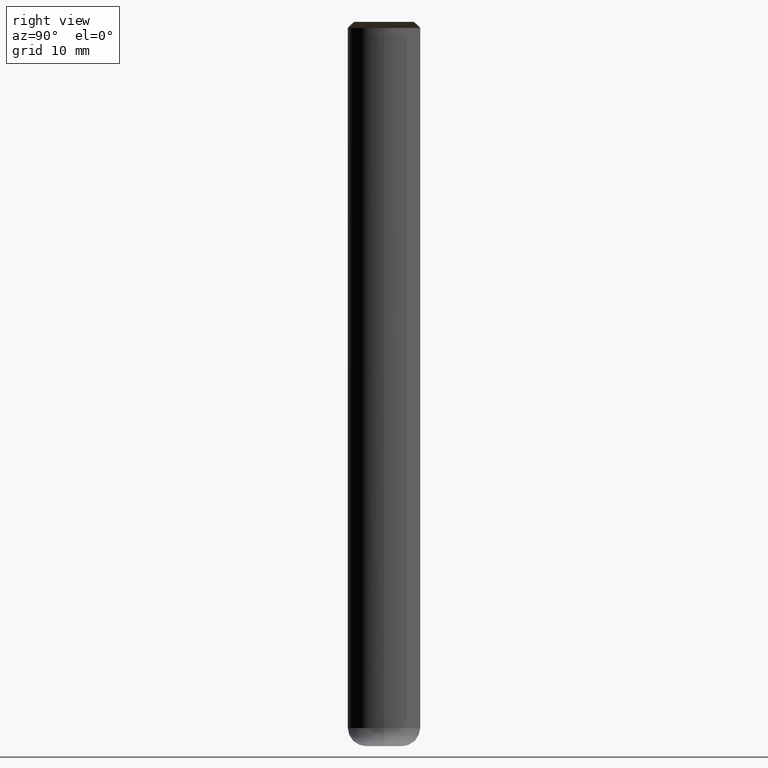
[diagram: clean part render]
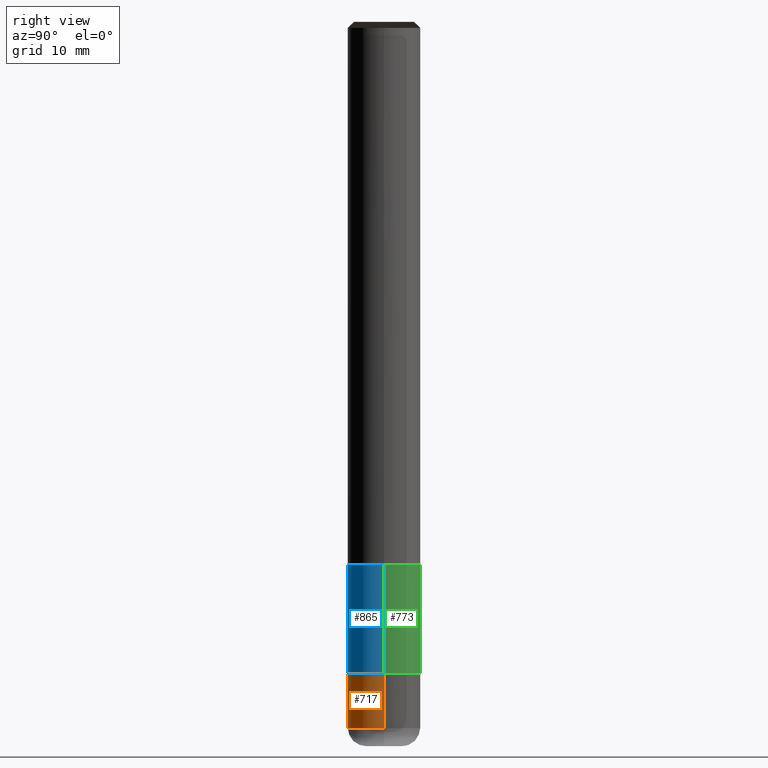
[diagram: same view with three faces highlighted in distinct colors, each labeled with its STEP entity id]
A machine part, right view with three faces highlighted in distinct colors.
Their STEP definitions:

[orange] entity #717 — the highlighted face is a freeform B-spline surface patch.
#535=CARTESIAN_POINT('',(3.0,0.0,-13.5));
#539=CARTESIAN_POINT('',(-3.0,0.0,-13.5));
#540=CARTESIAN_POINT('',(3.0,0.0,-9.0));
#544=CARTESIAN_POINT('',(-3.0,0.0,-9.0));
#552=CARTESIAN_POINT('',(-3.0,-3.0,-13.5));
#553=CARTESIAN_POINT('',(0.0,-3.0,-13.5));
#554=CARTESIAN_POINT('',(3.0,-3.0,-13.5));
#555=CARTESIAN_POINT('',(-3.0,-3.0,-9.0));
#556=CARTESIAN_POINT('',(0.0,-3.0,-9.0));
#557=CARTESIAN_POINT('',(3.0,-3.0,-9.0));
#698=(
BOUNDED_SURFACE()
B_SPLINE_SURFACE(1,2,(
(#539,#552,#553,#554,#535),
(#544,#555,#556,#557,#540)
), .UNSPECIFIED.,.F.,.F.,.F.)
B_SPLINE_SURFACE_WITH_KNOTS((2,2),(3,2,3),(
0.0,1.0),(
0.0,0.5,1.0), .UNSPECIFIED.)
GEOMETRIC_REPRESENTATION_ITEM()
RATIONAL_B_SPLINE_SURFACE(((1.0,0.707106781187,1.0,0.707106781187,1.0),
(1.0,0.707106781187,1.0,0.707106781187,1.0)
))
REPRESENTATION_ITEM('')
SURFACE()
);
#699=(
BOUNDED_CURVE()
B_SPLINE_CURVE(1,(#544,#539),.UNSPECIFIED.,.F.,.F.)
B_SPLINE_CURVE_WITH_KNOTS((2,2),
(0.0,1.0),.UNSPECIFIED.)
CURVE()
GEOMETRIC_REPRESENTATION_ITEM()
RATIONAL_B_SPLINE_CURVE((1.0,1.0))
REPRESENTATION_ITEM('')
);
#700=(
BOUNDED_CURVE()
B_SPLINE_CURVE(2,(#539,#552,#553,#554,#535),.UNSPECIFIED.,.F.,.F.)
B_SPLINE_CURVE_WITH_KNOTS((3,2,3),
(0.0,0.5,1.0),.UNSPECIFIED.)
CURVE()
GEOMETRIC_REPRESENTATION_ITEM()
RATIONAL_B_SPLINE_CURVE((1.0,0.707106781187,1.0,0.707106781187,1.0))
REPRESENTATION_ITEM('')
);
#701=(
BOUNDED_CURVE()
B_SPLINE_CURVE(1,(#535,#540),.UNSPECIFIED.,.F.,.F.)
B_SPLINE_CURVE_WITH_KNOTS((2,2),
(0.0,1.0),.UNSPECIFIED.)
CURVE()
GEOMETRIC_REPRESENTATION_ITEM()
RATIONAL_B_SPLINE_CURVE((1.0,1.0))
REPRESENTATION_ITEM('')
);
#702=(
BOUNDED_CURVE()
B_SPLINE_CURVE(2,(#540,#557,#556,#555,#544),.UNSPECIFIED.,.F.,.F.)
B_SPLINE_CURVE_WITH_KNOTS((3,2,3),
(0.0,0.5,1.0),.UNSPECIFIED.)
CURVE()
GEOMETRIC_REPRESENTATION_ITEM()
RATIONAL_B_SPLINE_CURVE((1.0,0.707106781187,1.0,0.707106781187,1.0))
REPRESENTATION_ITEM('')
);
#703=VERTEX_POINT('',#535);
#704=VERTEX_POINT('',#539);
#705=VERTEX_POINT('',#540);
#706=VERTEX_POINT('',#544);
#707=EDGE_CURVE('',#706,#704,#699,.T.);
#708=EDGE_CURVE('',#704,#703,#700,.T.);
#709=EDGE_CURVE('',#703,#705,#701,.T.);
#710=EDGE_CURVE('',#705,#706,#702,.T.);
#711=ORIENTED_EDGE('',*,*,#707,.T.);
#712=ORIENTED_EDGE('',*,*,#708,.T.);
#713=ORIENTED_EDGE('',*,*,#709,.T.);
#714=ORIENTED_EDGE('',*,*,#710,.T.);
#715=EDGE_LOOP('',(#711,#712,#713,#714));
#716=FACE_OUTER_BOUND('',#715,.T.);
#717=ADVANCED_FACE('',(#716),#698,.T.);

[blue] entity #865 — the highlighted face is a freeform B-spline surface patch.
#540=CARTESIAN_POINT('',(3.0,0.0,-9.0));
#544=CARTESIAN_POINT('',(-3.0,0.0,-9.0));
#555=CARTESIAN_POINT('',(-3.0,-3.0,-9.0));
#556=CARTESIAN_POINT('',(0.0,-3.0,-9.0));
#557=CARTESIAN_POINT('',(3.0,-3.0,-9.0));
#558=CARTESIAN_POINT('',(3.0,0.0,0.0));
#562=CARTESIAN_POINT('',(-3.0,0.0,0.0));
#574=CARTESIAN_POINT('',(-3.0,-3.0,0.0));
#575=CARTESIAN_POINT('',(0.0,-3.0,0.0));
#576=CARTESIAN_POINT('',(3.0,-3.0,0.0));
#846=(
BOUNDED_SURFACE()
B_SPLINE_SURFACE(1,2,(
(#544,#555,#556,#557,#540),
(#562,#574,#575,#576,#558)
), .UNSPECIFIED.,.F.,.F.,.F.)
B_SPLINE_SURFACE_WITH_KNOTS((2,2),(3,2,3),(
0.0,1.0),(
0.0,0.5,1.0), .UNSPECIFIED.)
GEOMETRIC_REPRESENTATION_ITEM()
RATIONAL_B_SPLINE_SURFACE(((1.0,0.707106781187,1.0,0.707106781187,1.0),
(1.0,0.707106781187,1.0,0.707106781187,1.0)
))
REPRESENTATION_ITEM('')
SURFACE()
);
#847=(
BOUNDED_CURVE()
B_SPLINE_CURVE(1,(#562,#544),.UNSPECIFIED.,.F.,.F.)
B_SPLINE_CURVE_WITH_KNOTS((2,2),
(0.0,1.0),.UNSPECIFIED.)
CURVE()
GEOMETRIC_REPRESENTATION_ITEM()
RATIONAL_B_SPLINE_CURVE((1.0,1.0))
REPRESENTATION_ITEM('')
);
#848=(
BOUNDED_CURVE()
B_SPLINE_CURVE(2,(#544,#555,#556,#557,#540),.UNSPECIFIED.,.F.,.F.)
B_SPLINE_CURVE_WITH_KNOTS((3,2,3),
(0.0,0.5,1.0),.UNSPECIFIED.)
CURVE()
GEOMETRIC_REPRESENTATION_ITEM()
RATIONAL_B_SPLINE_CURVE((1.0,0.707106781187,1.0,0.707106781187,1.0))
REPRESENTATION_ITEM('')
);
#849=(
BOUNDED_CURVE()
B_SPLINE_CURVE(1,(#540,#558),.UNSPECIFIED.,.F.,.F.)
B_SPLINE_CURVE_WITH_KNOTS((2,2),
(0.0,1.0),.UNSPECIFIED.)
CURVE()
GEOMETRIC_REPRESENTATION_ITEM()
RATIONAL_B_SPLINE_CURVE((1.0,1.0))
REPRESENTATION_ITEM('')
);
#850=(
BOUNDED_CURVE()
B_SPLINE_CURVE(2,(#558,#576,#575,#574,#562),.UNSPECIFIED.,.F.,.F.)
B_SPLINE_CURVE_WITH_KNOTS((3,2,3),
(0.0,0.5,1.0),.UNSPECIFIED.)
CURVE()
GEOMETRIC_REPRESENTATION_ITEM()
RATIONAL_B_SPLINE_CURVE((1.0,0.707106781187,1.0,0.707106781187,1.0))
REPRESENTATION_ITEM('')
);
#851=VERTEX_POINT('',#540);
#852=VERTEX_POINT('',#544);
#853=VERTEX_POINT('',#558);
#854=VERTEX_POINT('',#562);
#855=EDGE_CURVE('',#854,#852,#847,.T.);
#856=EDGE_CURVE('',#852,#851,#848,.T.);
#857=EDGE_CURVE('',#851,#853,#849,.T.);
#858=EDGE_CURVE('',#853,#854,#850,.T.);
#859=ORIENTED_EDGE('',*,*,#855,.T.);
#860=ORIENTED_EDGE('',*,*,#856,.T.);
#861=ORIENTED_EDGE('',*,*,#857,.T.);
#862=ORIENTED_EDGE('',*,*,#858,.T.);
#863=EDGE_LOOP('',(#859,#860,#861,#862));
#864=FACE_OUTER_BOUND('',#863,.T.);
#865=ADVANCED_FACE('',(#864),#846,.T.);

[green] entity #773 — the highlighted face is a freeform B-spline surface patch.
#540=CARTESIAN_POINT('',(3.0,0.0,-9.0));
#541=CARTESIAN_POINT('',(3.0,3.0,-9.0));
#542=CARTESIAN_POINT('',(0.0,3.0,-9.0));
#543=CARTESIAN_POINT('',(-3.0,3.0,-9.0));
#544=CARTESIAN_POINT('',(-3.0,0.0,-9.0));
#558=CARTESIAN_POINT('',(3.0,0.0,0.0));
#559=CARTESIAN_POINT('',(3.0,3.0,0.0));
#560=CARTESIAN_POINT('',(0.0,3.0,0.0));
#561=CARTESIAN_POINT('',(-3.0,3.0,0.0));
#562=CARTESIAN_POINT('',(-3.0,0.0,0.0));
#754=(
BOUNDED_SURFACE()
B_SPLINE_SURFACE(1,2,(
(#540,#541,#542,#543,#544),
(#558,#559,#560,#561,#562)
), .UNSPECIFIED.,.F.,.F.,.F.)
B_SPLINE_SURFACE_WITH_KNOTS((2,2),(3,2,3),(
0.0,1.0),(
0.0,0.5,1.0), .UNSPECIFIED.)
GEOMETRIC_REPRESENTATION_ITEM()
RATIONAL_B_SPLINE_SURFACE(((1.0,0.707106781187,1.0,0.707106781187,1.0),
(1.0,0.707106781187,1.0,0.707106781187,1.0)
))
REPRESENTATION_ITEM('')
SURFACE()
);
#755=(
BOUNDED_CURVE()
B_SPLINE_CURVE(2,(#558,#559,#560,#561,#562),.UNSPECIFIED.,.F.,.F.)
B_SPLINE_CURVE_WITH_KNOTS((3,2,3),
(0.0,0.5,1.0),.UNSPECIFIED.)
CURVE()
GEOMETRIC_REPRESENTATION_ITEM()
RATIONAL_B_SPLINE_CURVE((1.0,0.707106781187,1.0,0.707106781187,1.0))
REPRESENTATION_ITEM('')
);
#756=(
BOUNDED_CURVE()
B_SPLINE_CURVE(1,(#562,#544),.UNSPECIFIED.,.F.,.F.)
B_SPLINE_CURVE_WITH_KNOTS((2,2),
(0.0,1.0),.UNSPECIFIED.)
CURVE()
GEOMETRIC_REPRESENTATION_ITEM()
RATIONAL_B_SPLINE_CURVE((1.0,1.0))
REPRESENTATION_ITEM('')
);
#757=(
BOUNDED_CURVE()
B_SPLINE_CURVE(2,(#544,#543,#542,#541,#540),.UNSPECIFIED.,.F.,.F.)
B_SPLINE_CURVE_WITH_KNOTS((3,2,3),
(0.0,0.5,1.0),.UNSPECIFIED.)
CURVE()
GEOMETRIC_REPRESENTATION_ITEM()
RATIONAL_B_SPLINE_CURVE((1.0,0.707106781187,1.0,0.707106781187,1.0))
REPRESENTATION_ITEM('')
);
#758=(
BOUNDED_CURVE()
B_SPLINE_CURVE(1,(#540,#558),.UNSPECIFIED.,.F.,.F.)
B_SPLINE_CURVE_WITH_KNOTS((2,2),
(0.0,1.0),.UNSPECIFIED.)
CURVE()
GEOMETRIC_REPRESENTATION_ITEM()
RATIONAL_B_SPLINE_CURVE((1.0,1.0))
REPRESENTATION_ITEM('')
);
#759=VERTEX_POINT('',#540);
#760=VERTEX_POINT('',#544);
#761=VERTEX_POINT('',#558);
#762=VERTEX_POINT('',#562);
#763=EDGE_CURVE('',#761,#762,#755,.T.);
#764=EDGE_CURVE('',#762,#760,#756,.T.);
#765=EDGE_CURVE('',#760,#759,#757,.T.);
#766=EDGE_CURVE('',#759,#761,#758,.T.);
#767=ORIENTED_EDGE('',*,*,#763,.T.);
#768=ORIENTED_EDGE('',*,*,#764,.T.);
#769=ORIENTED_EDGE('',*,*,#765,.T.);
#770=ORIENTED_EDGE('',*,*,#766,.T.);
#771=EDGE_LOOP('',(#767,#768,#769,#770));
#772=FACE_OUTER_BOUND('',#771,.T.);
#773=ADVANCED_FACE('',(#772),#754,.T.);